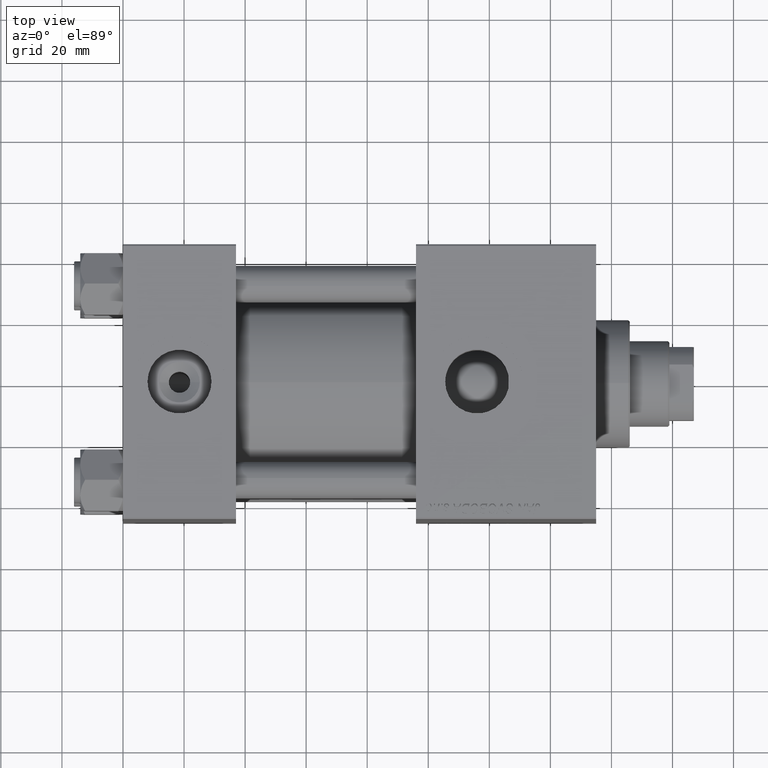
[diagram: clean part render]
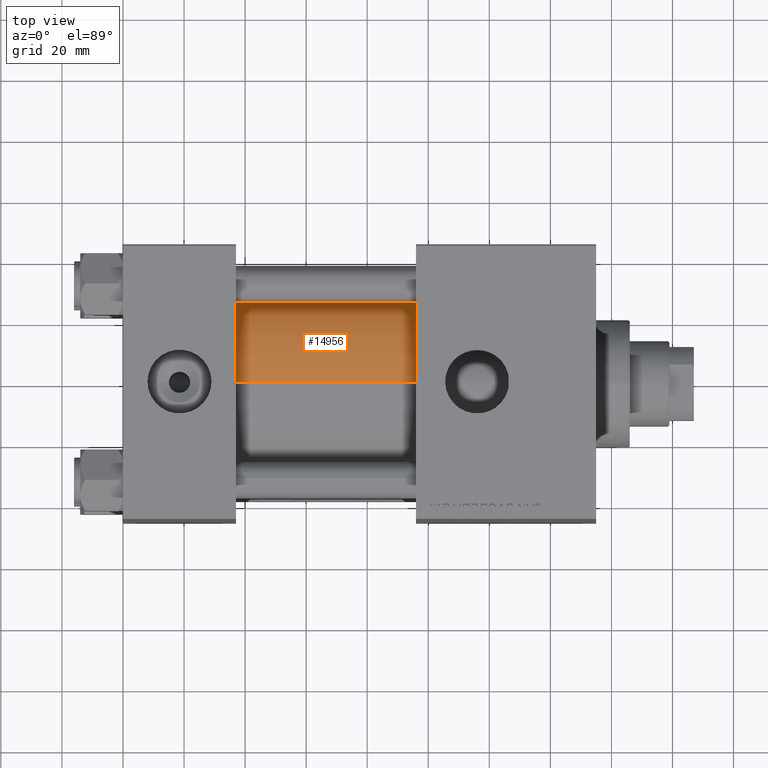
[diagram: same view with one face highlighted and labeled with its STEP entity id]
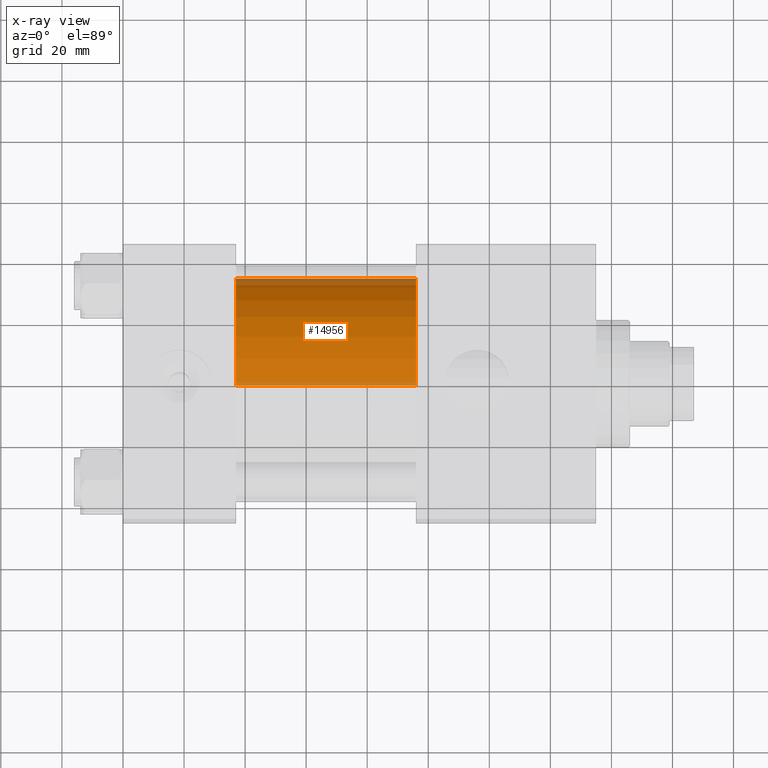
[diagram: x-ray of the same camera — body ghosted, the highlighted face saturated]
A machine part, top view. The second image highlights one B-rep face of the part: STEP entity #14956.
The next image is the same camera in x-ray: the body ghosted, the highlighted face saturated — about 9% of this face is hidden behind the body in this view.
In plain terms, the highlighted cylindrical surface (partial cylindrical patch) has radius 34.5 mm, axis along (-1, -0, -0).
Its self-contained STEP definition (entity closure, byte-faithful):
#814 = AXIS2_PLACEMENT_3D ( 'NONE', #7907, #27538, #31603 ) ;
#2660 = ORIENTED_EDGE ( 'NONE', *, *, #40220, .F. ) ;
#3321 = DIRECTION ( 'NONE',  ( 0.000000000000000000, 0.000000000000000000, -1.000000000000000000 ) ) ;
#5038 = DIRECTION ( 'NONE',  ( -1.000000000000000000, -0.000000000000000000, -0.000000000000000000 ) ) ;
#5257 = VERTEX_POINT ( 'NONE', #18946 ) ;
#7907 = CARTESIAN_POINT ( 'NONE',  ( 37.00000000000000000, -2.602085213965210642E-15, 0.000000000000000000 ) ) ;
#9598 = DIRECTION ( 'NONE',  ( 0.000000000000000000, 0.000000000000000000, 1.000000000000000000 ) ) ;
#11426 = AXIS2_PLACEMENT_3D ( 'NONE', #49705, #22953, #3321 ) ;
#11583 = ORIENTED_EDGE ( 'NONE', *, *, #39077, .T. ) ;
#13573 = AXIS2_PLACEMENT_3D ( 'NONE', #44247, #37366, #9598 ) ;
#14956 = ADVANCED_FACE ( 'NONE', ( #48329 ), #20838, .T. ) ;
#18946 = CARTESIAN_POINT ( 'NONE',  ( 96.00000000000000000, 1.622946243093158675E-15, -34.50000000000000000 ) ) ;
#20111 = CARTESIAN_POINT ( 'NONE',  ( 37.00000000000000000, -2.602085213965210642E-15, 34.50000000000000000 ) ) ;
#20344 = CIRCLE ( 'NONE', #814, 34.50000000000000000 ) ;
#20838 = CYLINDRICAL_SURFACE ( 'NONE', #13573, 34.50000000000000000 ) ;
#21440 = CARTESIAN_POINT ( 'NONE',  ( 37.00000000000000000, 1.622946243093158675E-15, -34.50000000000000000 ) ) ;
#22044 = CIRCLE ( 'NONE', #11426, 34.50000000000000000 ) ;
#22953 = DIRECTION ( 'NONE',  ( 1.000000000000000000, 0.000000000000000000, 0.000000000000000000 ) ) ;
#22973 = ORIENTED_EDGE ( 'NONE', *, *, #39517, .T. ) ;
#27538 = DIRECTION ( 'NONE',  ( 1.000000000000000000, -0.000000000000000000, 0.000000000000000000 ) ) ;
#29964 = EDGE_CURVE ( 'NONE', #5257, #44727, #22044, .T. ) ;
#30549 = DIRECTION ( 'NONE',  ( -1.000000000000000000, -0.000000000000000000, -0.000000000000000000 ) ) ;
#31603 = DIRECTION ( 'NONE',  ( 0.000000000000000000, 0.000000000000000000, 1.000000000000000000 ) ) ;
#32803 = LINE ( 'NONE', #35869, #39026 ) ;
#35108 = CARTESIAN_POINT ( 'NONE',  ( 96.00000000000000000, -2.602085213965210642E-15, 34.50000000000000000 ) ) ;
#35869 = CARTESIAN_POINT ( 'NONE',  ( 96.00000000000000000, 1.622946243093158675E-15, -34.50000000000000000 ) ) ;
#37366 = DIRECTION ( 'NONE',  ( -1.000000000000000000, -0.000000000000000000, -0.000000000000000000 ) ) ;
#39026 = VECTOR ( 'NONE', #5038, 1000.000000000000000 ) ;
#39077 = EDGE_CURVE ( 'NONE', #49478, #49768, #20344, .T. ) ;
#39517 = EDGE_CURVE ( 'NONE', #5257, #49478, #32803, .T. ) ;
#40220 = EDGE_CURVE ( 'NONE', #44727, #49768, #49186, .T. ) ;
#41766 = CARTESIAN_POINT ( 'NONE',  ( 96.00000000000000000, -2.602085213965210642E-15, 34.50000000000000000 ) ) ;
#42568 = ORIENTED_EDGE ( 'NONE', *, *, #29964, .F. ) ;
#44247 = CARTESIAN_POINT ( 'NONE',  ( 96.00000000000000000, -2.602085213965210642E-15, 0.000000000000000000 ) ) ;
#44727 = VERTEX_POINT ( 'NONE', #35108 ) ;
#45244 = EDGE_LOOP ( 'NONE', ( #42568, #22973, #11583, #2660 ) ) ;
#45590 = VECTOR ( 'NONE', #30549, 1000.000000000000000 ) ;
#48329 = FACE_OUTER_BOUND ( 'NONE', #45244, .T. ) ;
#49186 = LINE ( 'NONE', #41766, #45590 ) ;
#49478 = VERTEX_POINT ( 'NONE', #21440 ) ;
#49705 = CARTESIAN_POINT ( 'NONE',  ( 96.00000000000000000, -2.602085213965210642E-15, 0.000000000000000000 ) ) ;
#49768 = VERTEX_POINT ( 'NONE', #20111 ) ;